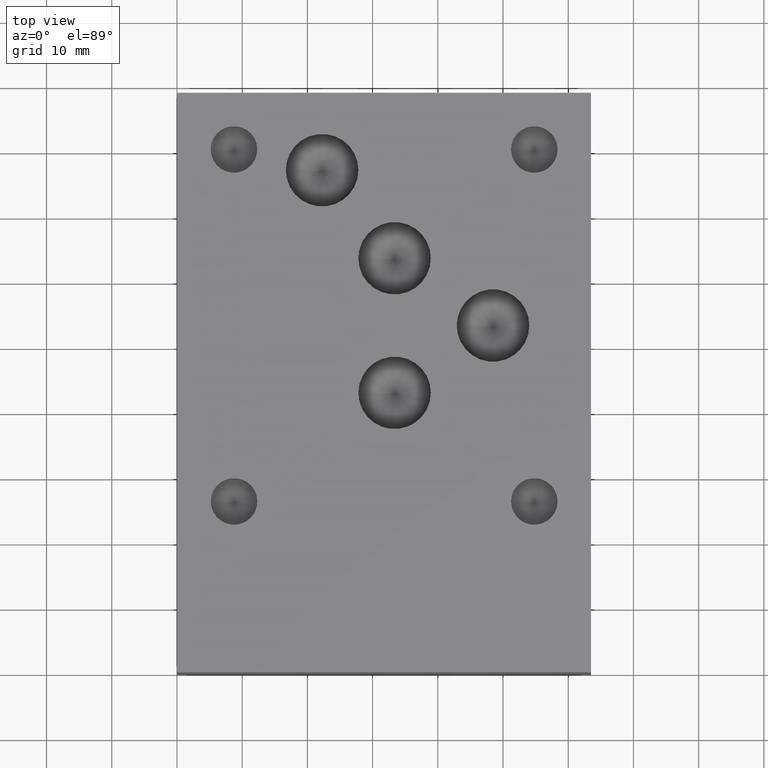
[diagram: clean part render]
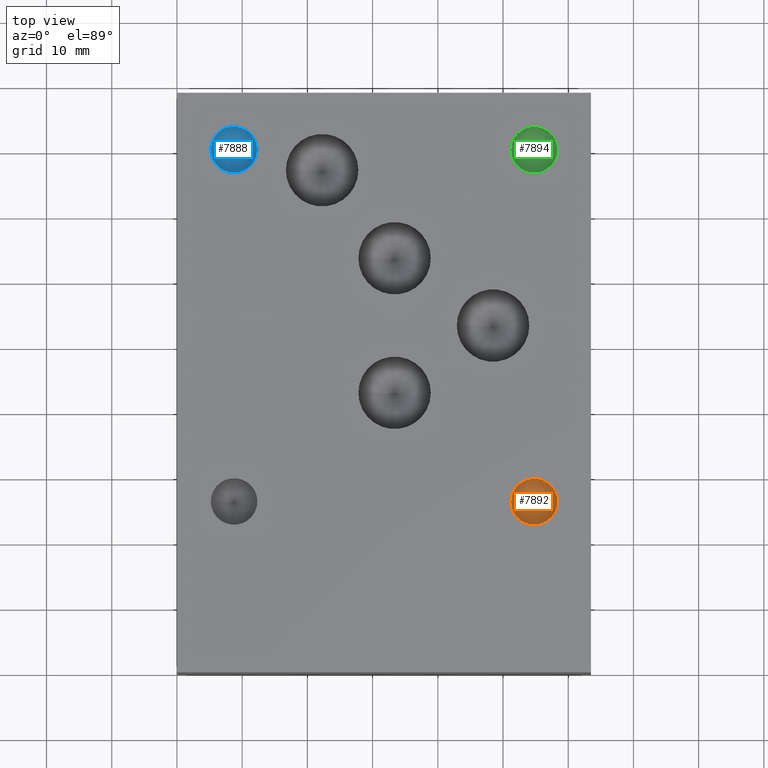
[diagram: same view with three faces highlighted in distinct colors, each labeled with its STEP entity id]
A machine part, top view with three faces highlighted in distinct colors.
Their STEP definitions:

[orange] entity #7892 — the highlighted conical surface has half-angle 60 deg.
#25=CONICAL_SURFACE('',#8283,1.78435,1.0471975511966);
#94=CIRCLE('',#8284,3.5687);
#95=CIRCLE('',#8285,3.5687);
#830=FACE_OUTER_BOUND('',#1267,.T.);
#1267=EDGE_LOOP('',(#6785,#6786,#6787,#6788));
#2103=LINE('',#13160,#2923);
#2923=VECTOR('',#9849,1.78435);
#3645=VERTEX_POINT('',#13156);
#3646=VERTEX_POINT('',#13157);
#3647=VERTEX_POINT('',#13159);
#4710=EDGE_CURVE('',#3645,#3646,#94,.T.);
#4711=EDGE_CURVE('',#3646,#3647,#2103,.T.);
#4712=EDGE_CURVE('',#3646,#3645,#95,.T.);
#6785=ORIENTED_EDGE('',*,*,#4710,.T.);
#6786=ORIENTED_EDGE('',*,*,#4711,.T.);
#6787=ORIENTED_EDGE('',*,*,#4711,.F.);
#6788=ORIENTED_EDGE('',*,*,#4712,.T.);
#7892=ADVANCED_FACE('',(#830),#25,.F.);
#8283=AXIS2_PLACEMENT_3D('',#13155,#9845,#9846);
#8284=AXIS2_PLACEMENT_3D('',#13158,#9847,#9848);
#8285=AXIS2_PLACEMENT_3D('',#13161,#9850,#9851);
#9845=DIRECTION('center_axis',(0.,0.,1.));
#9846=DIRECTION('ref_axis',(1.,0.,0.));
#9847=DIRECTION('center_axis',(0.,0.,1.));
#9848=DIRECTION('ref_axis',(1.,0.,0.));
#9849=DIRECTION('',(0.866025403784439,1.06057523872491E-16,-0.5));
#9850=DIRECTION('center_axis',(0.,0.,1.));
#9851=DIRECTION('ref_axis',(1.,0.,0.));
#13155=CARTESIAN_POINT('Origin',(54.7878,26.2001,22.3094150471715));
#13156=CARTESIAN_POINT('',(58.3565,26.2001,23.33961));
#13157=CARTESIAN_POINT('',(51.2191,26.2001,23.33961));
#13158=CARTESIAN_POINT('Origin',(54.7878,26.2001,23.33961));
#13159=CARTESIAN_POINT('',(54.7878,26.2001,21.279220094343));
#13160=CARTESIAN_POINT('',(53.00345,26.2001,22.3094150471715));
#13161=CARTESIAN_POINT('Origin',(54.7878,26.2001,23.33961));

[blue] entity #7888 — the highlighted conical surface has half-angle 60 deg.
#23=CONICAL_SURFACE('',#8271,1.78435,1.0471975511966);
#86=CIRCLE('',#8272,3.5687);
#87=CIRCLE('',#8273,3.5687);
#826=FACE_OUTER_BOUND('',#1263,.T.);
#1263=EDGE_LOOP('',(#6765,#6766,#6767,#6768));
#2099=LINE('',#13134,#2919);
#2919=VECTOR('',#9821,1.78435);
#3635=VERTEX_POINT('',#13130);
#3636=VERTEX_POINT('',#13131);
#3637=VERTEX_POINT('',#13133);
#4698=EDGE_CURVE('',#3635,#3636,#86,.T.);
#4699=EDGE_CURVE('',#3636,#3637,#2099,.T.);
#4700=EDGE_CURVE('',#3636,#3635,#87,.T.);
#6765=ORIENTED_EDGE('',*,*,#4698,.T.);
#6766=ORIENTED_EDGE('',*,*,#4699,.T.);
#6767=ORIENTED_EDGE('',*,*,#4699,.F.);
#6768=ORIENTED_EDGE('',*,*,#4700,.T.);
#7888=ADVANCED_FACE('',(#826),#23,.F.);
#8271=AXIS2_PLACEMENT_3D('',#13129,#9817,#9818);
#8272=AXIS2_PLACEMENT_3D('',#13132,#9819,#9820);
#8273=AXIS2_PLACEMENT_3D('',#13135,#9822,#9823);
#9817=DIRECTION('center_axis',(0.,0.,1.));
#9818=DIRECTION('ref_axis',(1.,0.,0.));
#9819=DIRECTION('center_axis',(0.,0.,1.));
#9820=DIRECTION('ref_axis',(1.,0.,0.));
#9821=DIRECTION('',(0.866025403784439,1.06057523872491E-16,-0.5));
#9822=DIRECTION('center_axis',(0.,0.,1.));
#9823=DIRECTION('ref_axis',(1.,0.,0.));
#13129=CARTESIAN_POINT('Origin',(8.7376,80.1878,22.3094150471715));
#13130=CARTESIAN_POINT('',(12.3063,80.1878,23.33961));
#13131=CARTESIAN_POINT('',(5.1689,80.1878,23.33961));
#13132=CARTESIAN_POINT('Origin',(8.7376,80.1878,23.33961));
#13133=CARTESIAN_POINT('',(8.7376,80.1878,21.279220094343));
#13134=CARTESIAN_POINT('',(6.95325,80.1878,22.3094150471715));
#13135=CARTESIAN_POINT('Origin',(8.7376,80.1878,23.33961));

[green] entity #7894 — the highlighted conical surface has half-angle 60 deg.
#26=CONICAL_SURFACE('',#8289,1.78435,1.0471975511966);
#98=CIRCLE('',#8290,3.5687);
#99=CIRCLE('',#8291,3.5687);
#832=FACE_OUTER_BOUND('',#1269,.T.);
#1269=EDGE_LOOP('',(#6795,#6796,#6797,#6798));
#2105=LINE('',#13173,#2925);
#2925=VECTOR('',#9863,1.78435);
#3650=VERTEX_POINT('',#13169);
#3651=VERTEX_POINT('',#13170);
#3652=VERTEX_POINT('',#13172);
#4716=EDGE_CURVE('',#3650,#3651,#98,.T.);
#4717=EDGE_CURVE('',#3651,#3652,#2105,.T.);
#4718=EDGE_CURVE('',#3651,#3650,#99,.T.);
#6795=ORIENTED_EDGE('',*,*,#4716,.T.);
#6796=ORIENTED_EDGE('',*,*,#4717,.T.);
#6797=ORIENTED_EDGE('',*,*,#4717,.F.);
#6798=ORIENTED_EDGE('',*,*,#4718,.T.);
#7894=ADVANCED_FACE('',(#832),#26,.F.);
#8289=AXIS2_PLACEMENT_3D('',#13168,#9859,#9860);
#8290=AXIS2_PLACEMENT_3D('',#13171,#9861,#9862);
#8291=AXIS2_PLACEMENT_3D('',#13174,#9864,#9865);
#9859=DIRECTION('center_axis',(0.,0.,1.));
#9860=DIRECTION('ref_axis',(1.,0.,0.));
#9861=DIRECTION('center_axis',(0.,0.,1.));
#9862=DIRECTION('ref_axis',(1.,0.,0.));
#9863=DIRECTION('',(0.866025403784439,1.06057523872491E-16,-0.5));
#9864=DIRECTION('center_axis',(0.,0.,1.));
#9865=DIRECTION('ref_axis',(1.,0.,0.));
#13168=CARTESIAN_POINT('Origin',(54.7878,80.1751,22.3094150471715));
#13169=CARTESIAN_POINT('',(58.3565,80.1751,23.33961));
#13170=CARTESIAN_POINT('',(51.2191,80.1751,23.33961));
#13171=CARTESIAN_POINT('Origin',(54.7878,80.1751,23.33961));
#13172=CARTESIAN_POINT('',(54.7878,80.1751,21.279220094343));
#13173=CARTESIAN_POINT('',(53.00345,80.1751,22.3094150471715));
#13174=CARTESIAN_POINT('Origin',(54.7878,80.1751,23.33961));